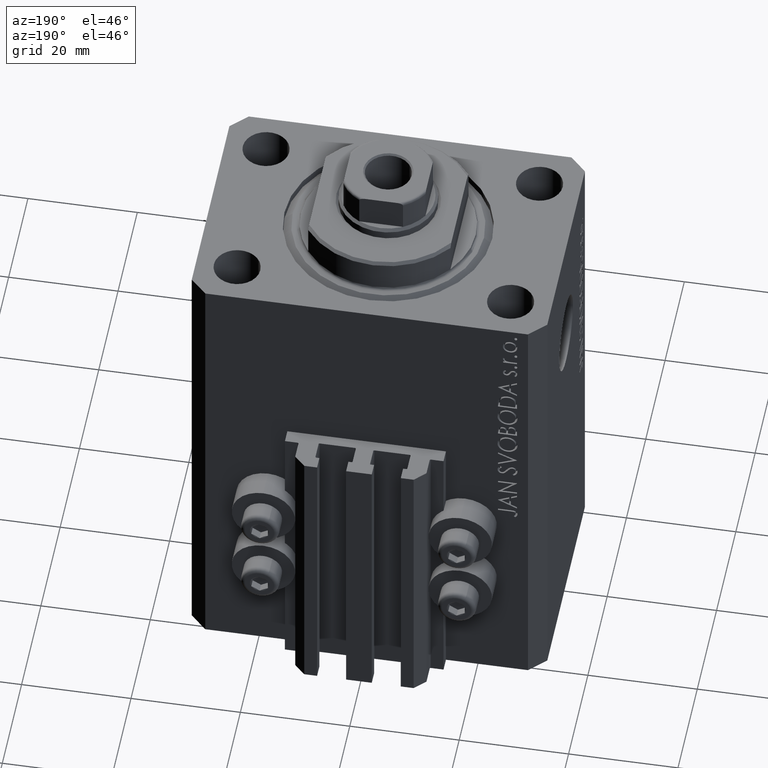
[diagram: clean part render]
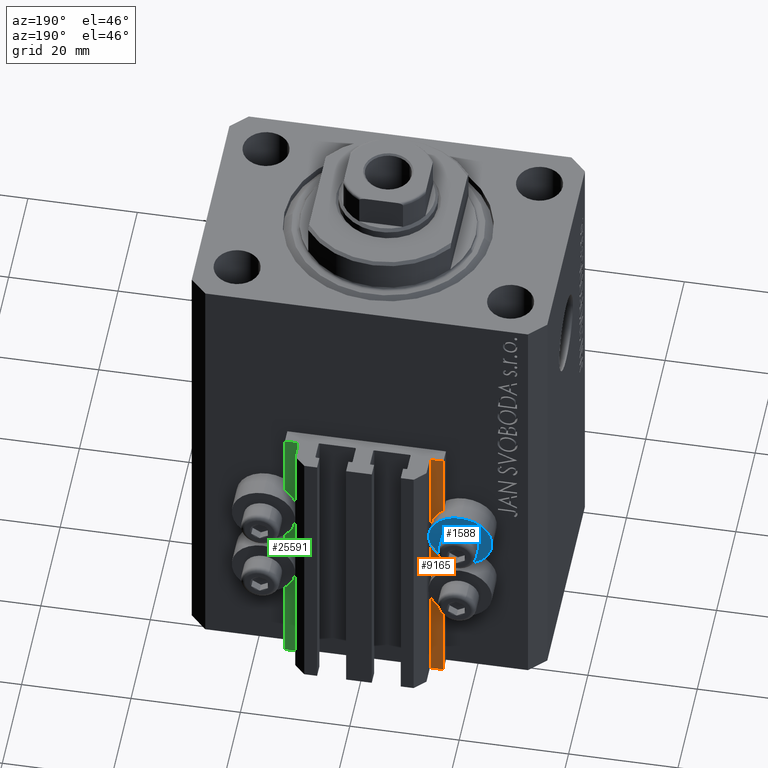
[diagram: same view with three faces highlighted in distinct colors, each labeled with its STEP entity id]
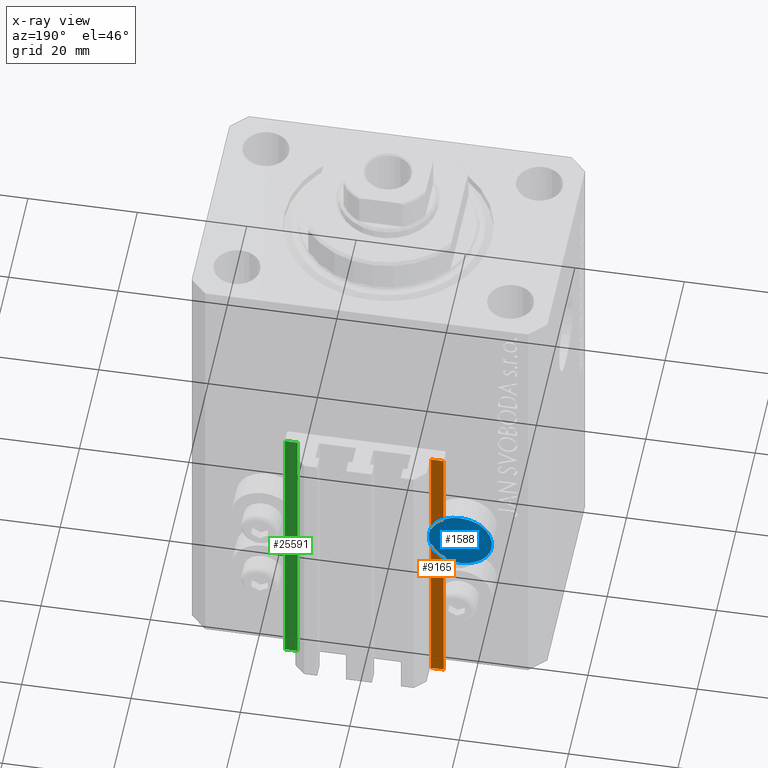
[diagram: x-ray of the same camera — body ghosted, the three highlighted faces saturated]
A machine part, auxiliary view with three faces highlighted in distinct colors.
The next image is the same camera in x-ray (body ghosted, the three faces saturated) — at least one of them is partly hidden behind the body in this view.
Their STEP definitions:

[orange] entity #9165 — the highlighted planar face has unit normal (0, 1, 0).
#408 = VERTEX_POINT ( 'NONE', #16594 ) ;
#1086 = FACE_OUTER_BOUND ( 'NONE', #30973, .T. ) ;
#1321 = PLANE ( 'NONE',  #21890 ) ;
#2106 = VERTEX_POINT ( 'NONE', #33308 ) ;
#3234 = ORIENTED_EDGE ( 'NONE', *, *, #19090, .F. ) ;
#3390 = VECTOR ( 'NONE', #40739, 1000.000000000000000 ) ;
#4176 = DIRECTION ( 'NONE',  ( 0.000000000000000000, 0.000000000000000000, 1.000000000000000000 ) ) ;
#7426 = DIRECTION ( 'NONE',  ( -1.000000000000000000, 1.508455196501571429E-15, 0.000000000000000000 ) ) ;
#8005 = CARTESIAN_POINT ( 'NONE',  ( -14.50000000000000000, 24.99999999999949196, -87.00000000000000000 ) ) ;
#9165 = ADVANCED_FACE ( 'NONE', ( #1086 ), #1321, .T. ) ;
#11416 = CARTESIAN_POINT ( 'NONE',  ( -12.20000000000000107, 24.99999999999948841, -87.00000000000000000 ) ) ;
#11521 = LINE ( 'NONE', #36919, #43742 ) ;
#12819 = ORIENTED_EDGE ( 'NONE', *, *, #32673, .F. ) ;
#16594 = CARTESIAN_POINT ( 'NONE',  ( -14.50000000000000000, 24.99999999999949196, -33.00000000000000000 ) ) ;
#17176 = EDGE_CURVE ( 'NONE', #21652, #2106, #41555, .T. ) ;
#17271 = ORIENTED_EDGE ( 'NONE', *, *, #17176, .T. ) ;
#18687 = LINE ( 'NONE', #26603, #3390 ) ;
#18842 = DIRECTION ( 'NONE',  ( -1.000000000000000000, 1.508455196501571627E-15, 0.000000000000000000 ) ) ;
#19090 = EDGE_CURVE ( 'NONE', #21729, #408, #11521, .T. ) ;
#20868 = ORIENTED_EDGE ( 'NONE', *, *, #28516, .T. ) ;
#21652 = VERTEX_POINT ( 'NONE', #29150 ) ;
#21729 = VERTEX_POINT ( 'NONE', #26021 ) ;
#21890 = AXIS2_PLACEMENT_3D ( 'NONE', #22684, #29402, #18842 ) ;
#22684 = CARTESIAN_POINT ( 'NONE',  ( -12.20000000000000107, 24.99999999999948841, -87.00000000000000000 ) ) ;
#26021 = CARTESIAN_POINT ( 'NONE',  ( -12.20000000000000107, 24.99999999999948841, -33.00000000000000000 ) ) ;
#26257 = LINE ( 'NONE', #8005, #39305 ) ;
#26603 = CARTESIAN_POINT ( 'NONE',  ( -12.20000000000000107, 24.99999999999948841, -87.00000000000000000 ) ) ;
#28516 = EDGE_CURVE ( 'NONE', #2106, #408, #26257, .T. ) ;
#29150 = CARTESIAN_POINT ( 'NONE',  ( -12.20000000000000107, 24.99999999999948841, -87.00000000000000000 ) ) ;
#29402 = DIRECTION ( 'NONE',  ( 1.508455196501571627E-15, 1.000000000000000000, -0.000000000000000000 ) ) ;
#30973 = EDGE_LOOP ( 'NONE', ( #3234, #12819, #17271, #20868 ) ) ;
#32673 = EDGE_CURVE ( 'NONE', #21652, #21729, #18687, .T. ) ;
#33308 = CARTESIAN_POINT ( 'NONE',  ( -14.50000000000000000, 24.99999999999949196, -87.00000000000000000 ) ) ;
#36919 = CARTESIAN_POINT ( 'NONE',  ( -12.20000000000000107, 24.99999999999948841, -33.00000000000000000 ) ) ;
#38273 = VECTOR ( 'NONE', #40658, 1000.000000000000000 ) ;
#39305 = VECTOR ( 'NONE', #4176, 1000.000000000000000 ) ;
#40658 = DIRECTION ( 'NONE',  ( -1.000000000000000000, 1.508455196501571429E-15, 0.000000000000000000 ) ) ;
#40739 = DIRECTION ( 'NONE',  ( 0.000000000000000000, 0.000000000000000000, 1.000000000000000000 ) ) ;
#41555 = LINE ( 'NONE', #11416, #38273 ) ;
#43742 = VECTOR ( 'NONE', #7426, 1000.000000000000000 ) ;

[blue] entity #1588 — the highlighted planar face has unit normal (0, -1, 0).
#584 = CARTESIAN_POINT ( 'NONE',  ( -18.00000000000000355, 27.49999999996051514, -50.39999999999999858 ) ) ;
#1372 = ORIENTED_EDGE ( 'NONE', *, *, #35276, .F. ) ;
#1588 = ADVANCED_FACE ( 'NONE', ( #34609, #31008 ), #13507, .F. ) ;
#2326 = DIRECTION ( 'NONE',  ( 0.000000000000000000, 1.000000000000000000, 0.000000000000000000 ) ) ;
#3451 = AXIS2_PLACEMENT_3D ( 'NONE', #5918, #2326, #27997 ) ;
#5918 = CARTESIAN_POINT ( 'NONE',  ( -18.00000000000000355, 27.49999999996051514, -50.39999999999999858 ) ) ;
#8697 = CARTESIAN_POINT ( 'NONE',  ( -18.00000000000000355, 27.49999999996051514, -50.39999999999999858 ) ) ;
#8722 = AXIS2_PLACEMENT_3D ( 'NONE', #8697, #15444, #37248 ) ;
#10277 = CIRCLE ( 'NONE', #24750, 5.799999999999999822 ) ;
#10511 = EDGE_CURVE ( 'NONE', #31597, #43931, #24990, .T. ) ;
#11793 = CARTESIAN_POINT ( 'NONE',  ( -18.00000000000000355, 27.49999999996051514, -52.40000000000000568 ) ) ;
#12422 = VERTEX_POINT ( 'NONE', #32940 ) ;
#13274 = DIRECTION ( 'NONE',  ( 0.000000000000000000, -1.000000000000000000, 0.000000000000000000 ) ) ;
#13507 = PLANE ( 'NONE',  #30481 ) ;
#13798 = DIRECTION ( 'NONE',  ( 0.000000000000000000, 0.000000000000000000, 1.000000000000000000 ) ) ;
#14053 = EDGE_LOOP ( 'NONE', ( #27977, #44886 ) ) ;
#15226 = DIRECTION ( 'NONE',  ( 0.000000000000000000, 1.000000000000000000, 0.000000000000000000 ) ) ;
#15444 = DIRECTION ( 'NONE',  ( -0.000000000000000000, 1.000000000000000000, -0.000000000000000000 ) ) ;
#19987 = CARTESIAN_POINT ( 'NONE',  ( -12.20000000000000284, 27.49999999996051514, -50.39999999999999858 ) ) ;
#23673 = CARTESIAN_POINT ( 'NONE',  ( -18.00000000000000355, 27.49999999996051514, -44.60000000000000142 ) ) ;
#24750 = AXIS2_PLACEMENT_3D ( 'NONE', #25077, #38729, #13798 ) ;
#24948 = CIRCLE ( 'NONE', #3451, 2.000000000000001776 ) ;
#24990 = CIRCLE ( 'NONE', #42607, 2.000000000000001776 ) ;
#25077 = CARTESIAN_POINT ( 'NONE',  ( -18.00000000000000355, 27.49999999996051514, -50.39999999999999858 ) ) ;
#25860 = VERTEX_POINT ( 'NONE', #23673 ) ;
#27601 = EDGE_CURVE ( 'NONE', #12422, #25860, #10277, .T. ) ;
#27977 = ORIENTED_EDGE ( 'NONE', *, *, #31365, .T. ) ;
#27997 = DIRECTION ( 'NONE',  ( 0.000000000000000000, 0.000000000000000000, 1.000000000000000000 ) ) ;
#29236 = ORIENTED_EDGE ( 'NONE', *, *, #10511, .F. ) ;
#30481 = AXIS2_PLACEMENT_3D ( 'NONE', #19987, #13274, #35557 ) ;
#31008 = FACE_OUTER_BOUND ( 'NONE', #14053, .T. ) ;
#31365 = EDGE_CURVE ( 'NONE', #25860, #12422, #43973, .T. ) ;
#31597 = VERTEX_POINT ( 'NONE', #11793 ) ;
#32940 = CARTESIAN_POINT ( 'NONE',  ( -18.00000000000000355, 27.49999999996051514, -56.20000000000000284 ) ) ;
#33208 = DIRECTION ( 'NONE',  ( 0.000000000000000000, 0.000000000000000000, 1.000000000000000000 ) ) ;
#34609 = FACE_BOUND ( 'NONE', #42079, .T. ) ;
#35276 = EDGE_CURVE ( 'NONE', #43931, #31597, #24948, .T. ) ;
#35557 = DIRECTION ( 'NONE',  ( 0.000000000000000000, -0.000000000000000000, -1.000000000000000000 ) ) ;
#37248 = DIRECTION ( 'NONE',  ( 0.000000000000000000, 0.000000000000000000, 1.000000000000000000 ) ) ;
#37551 = CARTESIAN_POINT ( 'NONE',  ( -18.00000000000000355, 27.49999999996051514, -48.39999999999999858 ) ) ;
#38729 = DIRECTION ( 'NONE',  ( -0.000000000000000000, 1.000000000000000000, -0.000000000000000000 ) ) ;
#42079 = EDGE_LOOP ( 'NONE', ( #1372, #29236 ) ) ;
#42607 = AXIS2_PLACEMENT_3D ( 'NONE', #584, #15226, #33208 ) ;
#43931 = VERTEX_POINT ( 'NONE', #37551 ) ;
#43973 = CIRCLE ( 'NONE', #8722, 5.799999999999999822 ) ;
#44886 = ORIENTED_EDGE ( 'NONE', *, *, #27601, .T. ) ;

[green] entity #25591 — the highlighted planar face has unit normal (0, 1, 0).
#1632 = VECTOR ( 'NONE', #27184, 1000.000000000000000 ) ;
#3411 = CARTESIAN_POINT ( 'NONE',  ( 14.49999999999999822, 24.99999999999950617, -87.00000000000000000 ) ) ;
#4902 = ORIENTED_EDGE ( 'NONE', *, *, #16927, .T. ) ;
#5014 = LINE ( 'NONE', #14879, #34727 ) ;
#5180 = VERTEX_POINT ( 'NONE', #40776 ) ;
#5344 = LINE ( 'NONE', #16388, #1632 ) ;
#5849 = CARTESIAN_POINT ( 'NONE',  ( 14.49999999999999822, 24.99999999999950617, -87.00000000000000000 ) ) ;
#8644 = ORIENTED_EDGE ( 'NONE', *, *, #16155, .F. ) ;
#9070 = VERTEX_POINT ( 'NONE', #28936 ) ;
#9556 = PLANE ( 'NONE',  #36269 ) ;
#10709 = VERTEX_POINT ( 'NONE', #3411 ) ;
#12462 = DIRECTION ( 'NONE',  ( 0.000000000000000000, 0.000000000000000000, 1.000000000000000000 ) ) ;
#13544 = LINE ( 'NONE', #5849, #25269 ) ;
#14879 = CARTESIAN_POINT ( 'NONE',  ( 14.49999999999999822, 24.99999999999950617, -87.00000000000000000 ) ) ;
#16155 = EDGE_CURVE ( 'NONE', #10709, #17828, #13544, .T. ) ;
#16388 = CARTESIAN_POINT ( 'NONE',  ( 14.49999999999999822, 24.99999999999950617, -33.00000000000000000 ) ) ;
#16927 = EDGE_CURVE ( 'NONE', #9070, #5180, #32110, .T. ) ;
#17000 = FACE_OUTER_BOUND ( 'NONE', #46024, .T. ) ;
#17828 = VERTEX_POINT ( 'NONE', #24082 ) ;
#19652 = DIRECTION ( 'NONE',  ( 0.000000000000000000, 1.000000000000000000, -0.000000000000000000 ) ) ;
#21564 = DIRECTION ( 'NONE',  ( 0.000000000000000000, 0.000000000000000000, 1.000000000000000000 ) ) ;
#24082 = CARTESIAN_POINT ( 'NONE',  ( 14.49999999999999822, 24.99999999999950617, -33.00000000000000000 ) ) ;
#25269 = VECTOR ( 'NONE', #31988, 1000.000000000000000 ) ;
#25485 = EDGE_CURVE ( 'NONE', #10709, #9070, #5014, .T. ) ;
#25591 = ADVANCED_FACE ( 'NONE', ( #17000 ), #9556, .T. ) ;
#27184 = DIRECTION ( 'NONE',  ( -1.000000000000000000, 0.000000000000000000, 0.000000000000000000 ) ) ;
#28936 = CARTESIAN_POINT ( 'NONE',  ( 12.20000000000000284, 24.99999999999950617, -87.00000000000000000 ) ) ;
#30680 = CARTESIAN_POINT ( 'NONE',  ( 14.49999999999999822, 24.99999999999950617, -87.00000000000000000 ) ) ;
#31036 = ORIENTED_EDGE ( 'NONE', *, *, #25485, .T. ) ;
#31988 = DIRECTION ( 'NONE',  ( 0.000000000000000000, 0.000000000000000000, 1.000000000000000000 ) ) ;
#32110 = LINE ( 'NONE', #46749, #39074 ) ;
#34727 = VECTOR ( 'NONE', #44370, 1000.000000000000000 ) ;
#36269 = AXIS2_PLACEMENT_3D ( 'NONE', #30680, #19652, #12462 ) ;
#39002 = ORIENTED_EDGE ( 'NONE', *, *, #47361, .F. ) ;
#39074 = VECTOR ( 'NONE', #21564, 1000.000000000000000 ) ;
#40776 = CARTESIAN_POINT ( 'NONE',  ( 12.20000000000000284, 24.99999999999950617, -33.00000000000000000 ) ) ;
#44370 = DIRECTION ( 'NONE',  ( -1.000000000000000000, 0.000000000000000000, 0.000000000000000000 ) ) ;
#46024 = EDGE_LOOP ( 'NONE', ( #39002, #8644, #31036, #4902 ) ) ;
#46749 = CARTESIAN_POINT ( 'NONE',  ( 12.20000000000000284, 24.99999999999950617, -87.00000000000000000 ) ) ;
#47361 = EDGE_CURVE ( 'NONE', #17828, #5180, #5344, .T. ) ;